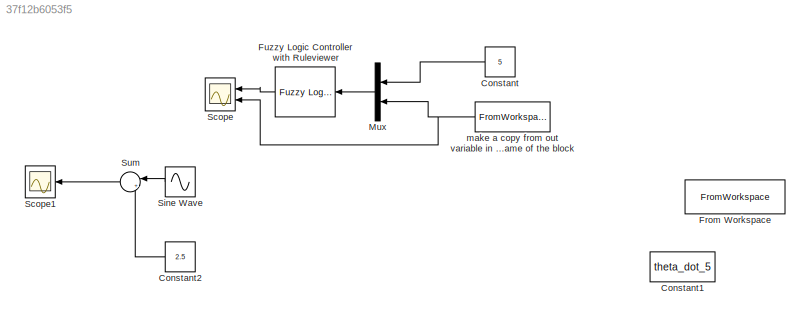
MODEL slx_37f12b6053f5
KIND model
CONFIG AbsTol = auto
CONFIG EnableMultiTasking = off
CONFIG FixedStep = auto
CONFIG MaxStep = auto
CONFIG MinStep = auto
CONFIG RelTol = 1e-3
CONFIG SampleTimeConstraint = Unconstrained
CONFIG SolverName = VariableStepAuto
CONFIG StartTime = 0.0
CONFIG StopTime = 13.5
BLOCK [Constant] Constant
  Value = 5
BLOCK [Constant] Constant1
  Commented = on
  Value = theta_dot_5
BLOCK [Constant] Constant2
  Commented = on
  Value = 2.5
BLOCK [FromWorkspace] From Workspace
  Commented = on
  VariableName = out.theta_dot
BLOCK [Reference] Fuzzy Logic Controller with Ruleviewer  REF=fuzblock/Fuzzy Logic   (lib defined in mdl_858b3b3e7478)
Controller 
with Ruleviewer
  Ports = [1, 1]
  SourceBlock = fuzblock/Fuzzy Logic \nController \nwith Ruleviewer
  SourceProductBaseCode = FL
  SourceType = Fuzzy Inference System
BLOCK [Mux] Mux
  DisplayOption = bar
  Inputs = 2
  Ports = [2, 1]
BLOCK [Scope] Scope
  Floating = off
  NumInputPorts = 2
  Ports = [2]
  ScopeSpecificationString = Simulink.scopes.TimeScopeBlockCfg('CurrentConfiguration', extmgr.ConfigurationSet(extmgr.Configuration('Core','General UI',true),extmgr.Configuration('Core','Source UI',true),extmgr.Configuration('Sources','WiredSimulink',true),extmgr.Configuration('Visuals','Time Domain',true,'SerializedDisplays',{struct('MinYLimReal','-5.66628','MaxYLimReal','5.66662','YLabelReal','','MinYLimMag','0.00000','MaxY...<+1462ch>
BLOCK [Scope] Scope1
  Commented = on
  Floating = off
  NumInputPorts = 1
  Ports = [1]
  ScopeSpecificationString = Simulink.scopes.TimeScopeBlockCfg('CurrentConfiguration', extmgr.ConfigurationSet(extmgr.Configuration('Core','General UI',true),extmgr.Configuration('Core','Source UI',true),extmgr.Configuration('Sources','WiredSimulink',true,'DataLoggingVariableName','ScopeData1'),extmgr.Configuration('Visuals','Time Domain',true,'SerializedDisplays',{struct('MinYLimReal','2.18757','MaxYLimReal','5.31189','YLabe...<+1716ch>
BLOCK [Sin] Sine Wave
  Amplitude = 2.5
  Commented = on
  Frequency = 0.25
  Ports = [0, 1]
  SampleTime = 0
BLOCK [Sum] Sum
  Commented = on
  Inputs = |++
  Ports = [2, 1]
BLOCK [FromWorkspace] make a copy from out variable in the other file to the workspace then rename it with the name of the block
  VariableName = out_theta_dot_5.theta_dot
LINE Constant2:1 -> Sum:2
LINE Constant:1 -> Mux:1
LINE Fuzzy Logic Controller with Ruleviewer:1 -> Scope:1
LINE Mux:1 -> Fuzzy Logic Controller with Ruleviewer:1
LINE Sine Wave:1 -> Sum:1
LINE Sum:1 -> Scope1:1
NET make a copy from out variable in the other file to the workspace then rename it with the name of the block:1 -> Mux:2, Scope:2
note: NET lines group one-source signal fan-out (src -> all destinations, sorted); 1:1 wires keep LINE
